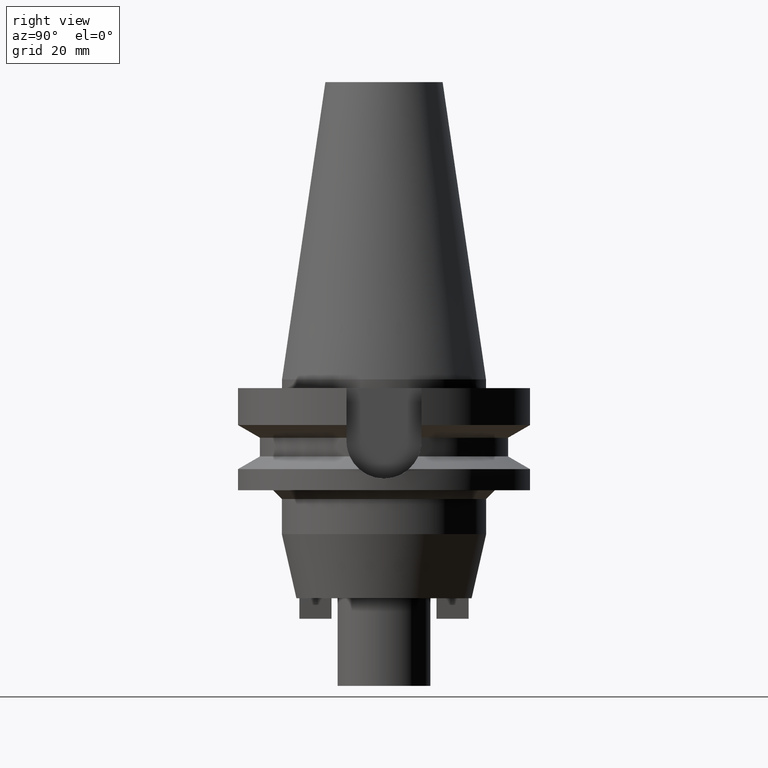
[diagram: clean part render]
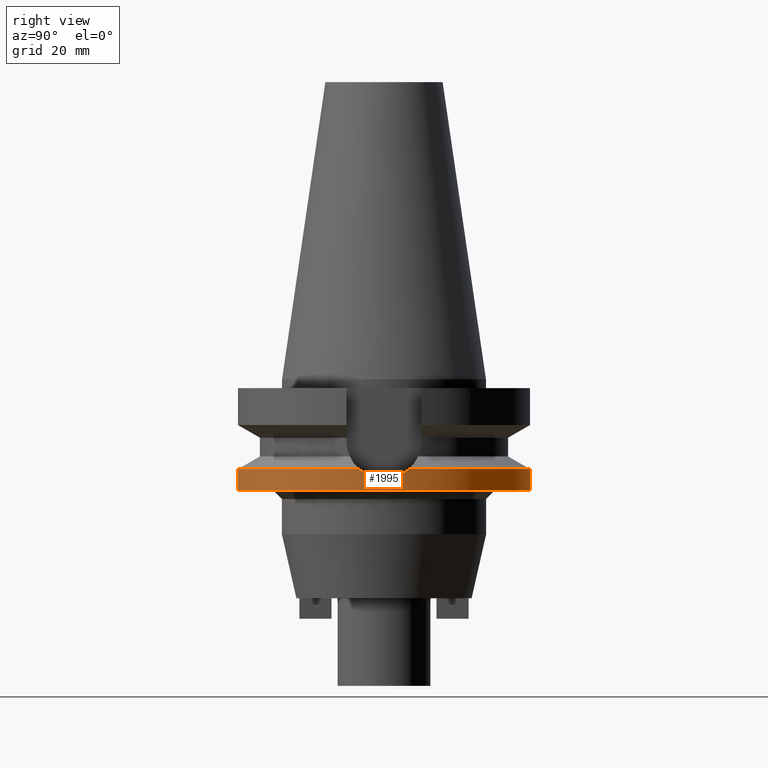
[diagram: same view with one face highlighted and labeled with its STEP entity id]
A machine part, right view. The second image highlights one B-rep face of the part: STEP entity #1995.
In plain terms, the highlighted cylindrical surface (partial cylindrical patch) has radius 50 mm, axis along (0, 0, -1).
Its self-contained STEP definition (entity closure, byte-faithful):
#502=CARTESIAN_POINT('',(0.E0,1.373318920564E-14,-3.8E1));
#503=DIRECTION('',(0.E0,0.E0,1.E0));
#504=DIRECTION('',(0.E0,-1.E0,0.E0));
#505=AXIS2_PLACEMENT_3D('',#502,#503,#504);
#534=CARTESIAN_POINT('',(4.926250064874E1,-8.556052234130E0,-3.073730776427E1));
#535=CARTESIAN_POINT('',(4.936649611958E1,-7.957285792574E0,-3.127166809524E1));
#536=CARTESIAN_POINT('',(4.956428496855E1,-6.687832623321E0,-3.220416769685E1));
#537=CARTESIAN_POINT('',(4.980480412100E1,-4.595876696255E0,-3.322690243424E1));
#538=CARTESIAN_POINT('',(4.996455573366E1,-2.307453981206E0,-3.386325285715E1));
#539=CARTESIAN_POINT('',(5.E1,-7.763522324037E-1,-3.4E1));
#540=CARTESIAN_POINT('',(5.E1,1.145902009962E-14,-3.4E1));
#545=CARTESIAN_POINT('',(5.E1,1.145902009962E-14,-3.4E1));
#546=CARTESIAN_POINT('',(5.E1,7.764873758784E-1,-3.4E1));
#547=CARTESIAN_POINT('',(4.996454298092E1,2.307787695181E0,-3.386320330492E1));
#548=CARTESIAN_POINT('',(4.980476725342E1,4.596271102309E0,-3.322675214137E1));
#549=CARTESIAN_POINT('',(4.956424417380E1,6.688114634516E0,-3.220398525577E1));
#550=CARTESIAN_POINT('',(4.936647870431E1,7.957386063113E0,-3.127157861027E1));
#551=CARTESIAN_POINT('',(4.926250064874E1,8.556052234130E0,-3.073730776427E1));
#556=DIRECTION('',(0.E0,2.250196262218E-14,-1.E0));
#557=VECTOR('',#556,7.262692235730E0);
#558=CARTESIAN_POINT('',(0.E0,5.E1,-3.073730776427E1));
#559=LINE('',#558,#557);
#614=CARTESIAN_POINT('',(0.E0,0.E0,-3.073730776427E1));
#615=DIRECTION('',(0.E0,0.E0,-1.E0));
#616=DIRECTION('',(9.852500129747E-1,-1.711210446826E-1,0.E0));
#617=AXIS2_PLACEMENT_3D('',#614,#615,#616);
#658=DIRECTION('',(0.E0,-2.054527022026E-14,-1.E0));
#659=VECTOR('',#658,7.262692235730E0);
#660=CARTESIAN_POINT('',(0.E0,-5.E1,-3.073730776427E1));
#661=LINE('',#660,#659);
#684=CARTESIAN_POINT('',(0.E0,0.E0,-3.073730776427E1));
#685=DIRECTION('',(0.E0,0.E0,-1.E0));
#686=DIRECTION('',(0.E0,1.E0,0.E0));
#687=AXIS2_PLACEMENT_3D('',#684,#685,#686);
#1380=CARTESIAN_POINT('',(0.E0,-5.E1,-3.8E1));
#1381=CARTESIAN_POINT('',(0.E0,5.E1,-3.8E1));
#1382=VERTEX_POINT('',#1380);
#1383=VERTEX_POINT('',#1381);
#1384=VERTEX_POINT('',#545);
#1385=VERTEX_POINT('',#551);
#1386=VERTEX_POINT('',#534);
#1387=CARTESIAN_POINT('',(0.E0,5.E1,-3.073730776427E1));
#1388=VERTEX_POINT('',#1387);
#1389=CARTESIAN_POINT('',(0.E0,-5.E1,-3.073730776427E1));
#1390=VERTEX_POINT('',#1389);
#1975=CARTESIAN_POINT('',(0.E0,1.373318920564E-14,1.1214E2));
#1976=DIRECTION('',(0.E0,0.E0,-1.E0));
#1977=DIRECTION('',(0.E0,-1.E0,0.E0));
#1978=AXIS2_PLACEMENT_3D('',#1975,#1976,#1977);
#1979=CYLINDRICAL_SURFACE('',#1978,5.E1);
#1981=ORIENTED_EDGE('',*,*,#1980,.T.);
#1983=ORIENTED_EDGE('',*,*,#1982,.T.);
#1985=ORIENTED_EDGE('',*,*,#1984,.F.);
#1987=ORIENTED_EDGE('',*,*,#1986,.T.);
#1988=ORIENTED_EDGE('',*,*,#1964,.F.);
#1990=ORIENTED_EDGE('',*,*,#1989,.F.);
#1992=ORIENTED_EDGE('',*,*,#1991,.F.);
#1993=EDGE_LOOP('',(#1981,#1983,#1985,#1987,#1988,#1990,#1992));
#1994=FACE_OUTER_BOUND('',#1993,.F.);
#506=CIRCLE('',#505,5.E1);
#541=B_SPLINE_CURVE_WITH_KNOTS('',3,(#534,#535,#536,#537,#538,#539,#540),
.UNSPECIFIED.,.F.,.F.,(4,1,1,1,4),(0.E0,2.5E-1,5.E-1,7.5E-1,1.E0),
.UNSPECIFIED.);
#552=B_SPLINE_CURVE_WITH_KNOTS('',3,(#545,#546,#547,#548,#549,#550,#551),
.UNSPECIFIED.,.F.,.F.,(4,1,1,1,4),(0.E0,2.5E-1,5.E-1,7.5E-1,1.E0),
.UNSPECIFIED.);
#618=CIRCLE('',#617,5.E1);
#688=CIRCLE('',#687,5.E1);
#1964=EDGE_CURVE('',#1382,#1383,#506,.T.);
#1980=EDGE_CURVE('',#1386,#1384,#541,.T.);
#1982=EDGE_CURVE('',#1384,#1385,#552,.T.);
#1984=EDGE_CURVE('',#1388,#1385,#688,.T.);
#1986=EDGE_CURVE('',#1388,#1383,#559,.T.);
#1989=EDGE_CURVE('',#1390,#1382,#661,.T.);
#1991=EDGE_CURVE('',#1386,#1390,#618,.T.);
#1995=ADVANCED_FACE('',(#1994),#1979,.T.);